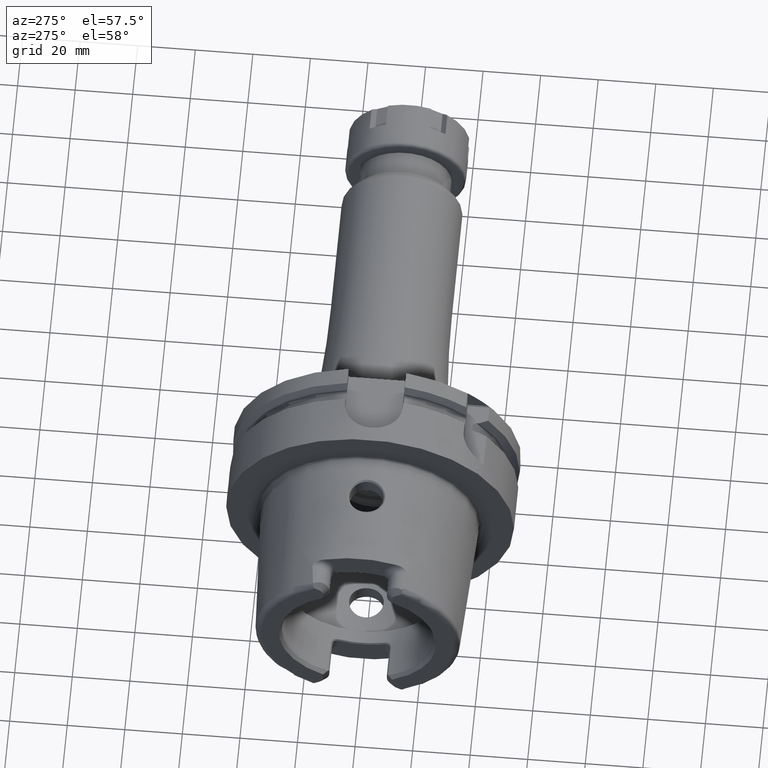
[diagram: clean part render]
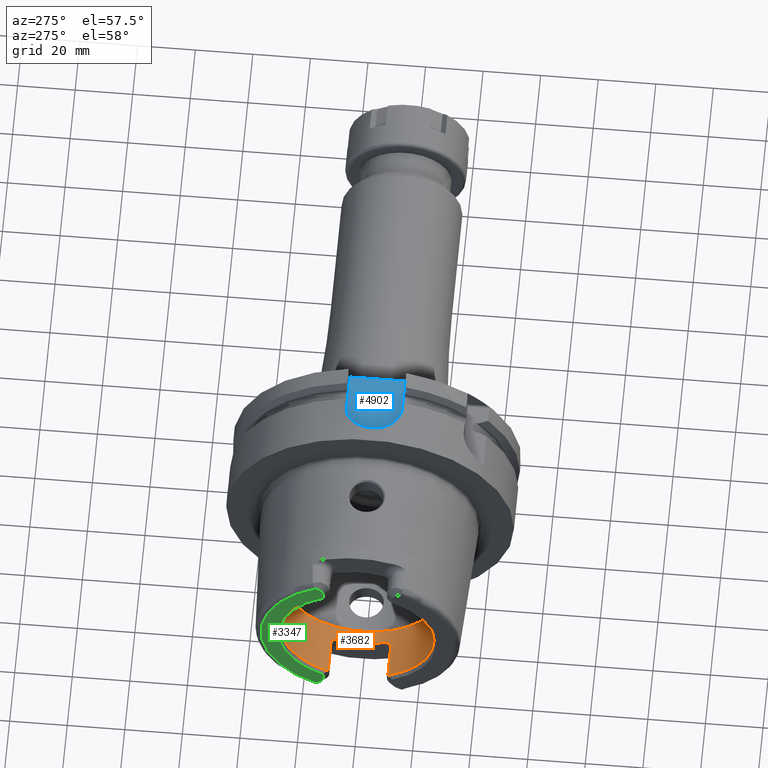
[diagram: same view with three faces highlighted in distinct colors, each labeled with its STEP entity id]
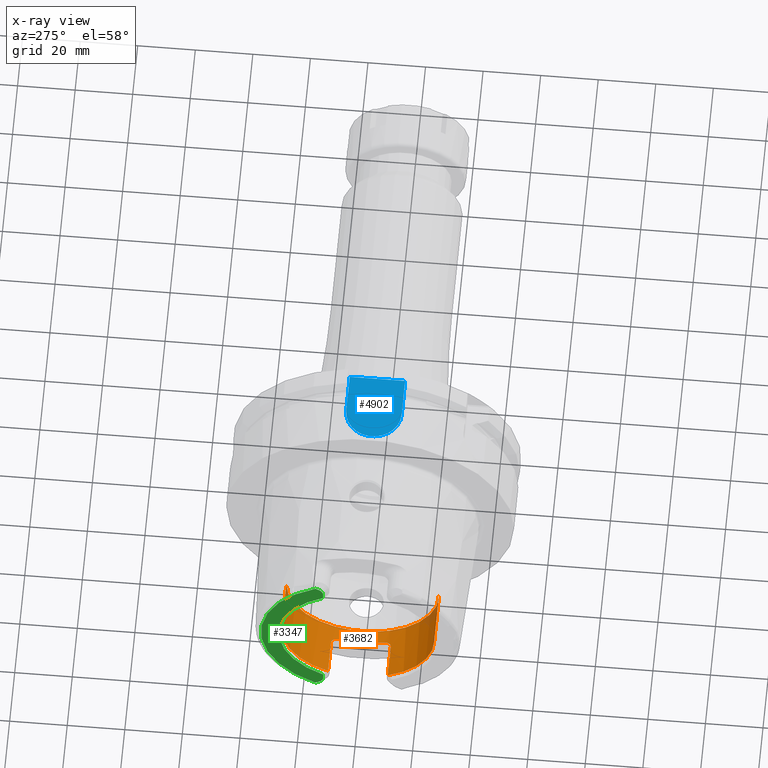
[diagram: x-ray of the same camera — body ghosted, the three highlighted faces saturated]
A machine part, auxiliary view with three faces highlighted in distinct colors.
The next image is the same camera in x-ray (body ghosted, the three faces saturated) — at least one of them is partly hidden behind the body in this view.
Their STEP definitions:

[orange] entity #3682 — the highlighted cylindrical surface (partial cylindrical patch) has radius 26.5 mm, axis along (1, 0, 0).
#152=CARTESIAN_POINT('',(-4.85E1,1.051E1,-2.432673220965E1));
#172=CARTESIAN_POINT('',(-4.85E1,0.E0,0.E0));
#173=DIRECTION('',(-1.E0,0.E0,0.E0));
#174=DIRECTION('',(0.E0,1.E0,0.E0));
#175=AXIS2_PLACEMENT_3D('',#172,#173,#174);
#180=CARTESIAN_POINT('',(-4.85E1,-1.051E1,-2.432673220965E1));
#182=CARTESIAN_POINT('',(-4.85E1,0.E0,0.E0));
#183=DIRECTION('',(-1.E0,0.E0,0.E0));
#184=DIRECTION('',(0.E0,-3.966037735849E-1,-9.179898947038E-1));
#185=AXIS2_PLACEMENT_3D('',#182,#183,#184);
#454=CARTESIAN_POINT('',(-4.85E1,-1.051E1,-2.432673220965E1));
#455=CARTESIAN_POINT('',(-4.846009940760E1,-1.047009940760E1,
-2.434397066250E1));
#456=CARTESIAN_POINT('',(-4.842017594144E1,-1.043017594144E1,
-2.436110250799E1));
#457=CARTESIAN_POINT('',(-4.838022966775E1,-1.039022966775E1,
-2.437812805470E1));
#459=DIRECTION('',(1.E0,0.E0,0.E0));
#460=VECTOR('',#459,1.138022966775E1);
#461=CARTESIAN_POINT('',(-4.838022966775E1,-1.039022966775E1,
-2.437812805470E1));
#462=LINE('',#461,#460);
#463=CARTESIAN_POINT('',(-3.471132486541E1,-8.01E0,-2.526044140549E1));
#464=CARTESIAN_POINT('',(-3.470878365387E1,-8.120563234659E0,
-2.522538218006E1));
#465=CARTESIAN_POINT('',(-3.471906599640E1,-8.340498761004E0,
-2.515406323082E1));
#466=CARTESIAN_POINT('',(-3.478267622202E1,-8.672586520945E0,
-2.504149237512E1));
#467=CARTESIAN_POINT('',(-3.489268945815E1,-8.989467647906E0,
-2.492938353432E1));
#468=CARTESIAN_POINT('',(-3.504052322957E1,-9.277750297862E0,
-2.482340953473E1));
#469=CARTESIAN_POINT('',(-3.522199090026E1,-9.537479373862E0,
-2.472468297045E1));
#470=CARTESIAN_POINT('',(-3.543924040038E1,-9.773195748090E0,
-2.463237051390E1));
#471=CARTESIAN_POINT('',(-3.569196362013E1,-9.980705213956E0,
-2.454892857931E1));
#472=CARTESIAN_POINT('',(-3.598453186629E1,-1.015759575719E1,
-2.447617541727E1));
#473=CARTESIAN_POINT('',(-3.632143240491E1,-1.029570459018E1,
-2.441829554687E1));
#474=CARTESIAN_POINT('',(-3.667918985616E1,-1.037618705974E1,
-2.438412368561E1));
#475=CARTESIAN_POINT('',(-3.689481839480E1,-1.039022966775E1,
-2.437812805470E1));
#476=CARTESIAN_POINT('',(-3.7E1,-1.039022966775E1,-2.437812805470E1));
#478=CARTESIAN_POINT('',(-3.471132486541E1,8.01E0,-2.526044140549E1));
#479=CARTESIAN_POINT('',(-3.471132486541E1,7.271271578955E0,-2.549468967366E1));
#480=CARTESIAN_POINT('',(-3.471132486546E1,5.773250992792E0,-2.589833317849E1));
#481=CARTESIAN_POINT('',(-3.471132486544E1,3.481810319461E0,-2.630458298809E1));
#482=CARTESIAN_POINT('',(-3.471132486544E1,1.163586982585E0,-2.650849211583E1));
#483=CARTESIAN_POINT('',(-3.471132486544E1,-1.163586982585E0,
-2.650849211583E1));
#484=CARTESIAN_POINT('',(-3.471132486544E1,-3.481810319461E0,
-2.630458298809E1));
#485=CARTESIAN_POINT('',(-3.471132486546E1,-5.773250992791E0,
-2.589833317849E1));
#486=CARTESIAN_POINT('',(-3.471132486541E1,-7.271271578958E0,
-2.549468967366E1));
#487=CARTESIAN_POINT('',(-3.471132486541E1,-8.01E0,-2.526044140549E1));
#489=CARTESIAN_POINT('',(-3.7E1,1.039022966775E1,-2.437812805470E1));
#490=CARTESIAN_POINT('',(-3.689375760304E1,1.039022966775E1,-2.437812805470E1));
#491=CARTESIAN_POINT('',(-3.667635124759E1,1.037592175927E1,-2.438423721529E1));
#492=CARTESIAN_POINT('',(-3.631623052643E1,1.029415408513E1,-2.441895189414E1));
#493=CARTESIAN_POINT('',(-3.597947032639E1,1.015497495082E1,-2.447726388108E1));
#494=CARTESIAN_POINT('',(-3.568903934051E1,9.978495762119E0,-2.454982411868E1));
#495=CARTESIAN_POINT('',(-3.543805179144E1,9.771970406757E0,-2.463285308238E1));
#496=CARTESIAN_POINT('',(-3.522178538203E1,9.537157318169E0,-2.472480442904E1));
#497=CARTESIAN_POINT('',(-3.504048499348E1,9.277715471543E0,-2.482342368645E1));
#498=CARTESIAN_POINT('',(-3.489237648633E1,8.988811706632E0,-2.492962282131E1));
#499=CARTESIAN_POINT('',(-3.478230284625E1,8.671343229943E0,-2.504192722240E1));
#500=CARTESIAN_POINT('',(-3.471884880625E1,8.338547582645E0,-2.515470883480E1));
#501=CARTESIAN_POINT('',(-3.470880260289E1,8.119738798873E0,-2.522564360584E1));
#502=CARTESIAN_POINT('',(-3.471132486541E1,8.01E0,-2.526044140549E1));
#504=DIRECTION('',(1.E0,0.E0,0.E0));
#505=VECTOR('',#504,1.138022966775E1);
#506=CARTESIAN_POINT('',(-4.838022966775E1,1.039022966775E1,-2.437812805470E1));
#507=LINE('',#506,#505);
#508=CARTESIAN_POINT('',(-4.838022966775E1,1.039022966775E1,-2.437812805470E1));
#509=CARTESIAN_POINT('',(-4.842017594144E1,1.043017594144E1,-2.436110250799E1));
#510=CARTESIAN_POINT('',(-4.846009940760E1,1.047009940760E1,-2.434397066250E1));
#511=CARTESIAN_POINT('',(-4.85E1,1.051E1,-2.432673220965E1));
#513=DIRECTION('',(-1.E0,0.E0,0.E0));
#514=VECTOR('',#513,1.849662432703E1);
#515=CARTESIAN_POINT('',(-3.000337567297E1,2.65E1,0.E0));
#516=LINE('',#515,#514);
#517=CARTESIAN_POINT('',(-3.000337567297E1,0.E0,0.E0));
#518=DIRECTION('',(-1.E0,0.E0,0.E0));
#519=DIRECTION('',(0.E0,1.E0,0.E0));
#520=AXIS2_PLACEMENT_3D('',#517,#518,#519);
#522=DIRECTION('',(-1.E0,0.E0,0.E0));
#523=VECTOR('',#522,1.849662432703E1);
#524=CARTESIAN_POINT('',(-3.000337567297E1,-2.65E1,0.E0));
#525=LINE('',#524,#523);
#2827=CARTESIAN_POINT('',(-3.000337567297E1,2.65E1,0.E0));
#2828=VERTEX_POINT('',#2827);
#2829=CARTESIAN_POINT('',(-4.85E1,2.65E1,0.E0));
#2830=VERTEX_POINT('',#2829);
#2839=CARTESIAN_POINT('',(-3.000337567297E1,-2.65E1,0.E0));
#2840=VERTEX_POINT('',#2839);
#2841=CARTESIAN_POINT('',(-4.85E1,-2.65E1,0.E0));
#2842=VERTEX_POINT('',#2841);
#2952=CARTESIAN_POINT('',(-3.7E1,-1.039022966775E1,-2.437812805470E1));
#2953=VERTEX_POINT('',#2952);
#2954=CARTESIAN_POINT('',(-3.471132486541E1,-8.01E0,-2.526044140549E1));
#2955=VERTEX_POINT('',#2954);
#2956=CARTESIAN_POINT('',(-3.7E1,1.039022966775E1,-2.437812805470E1));
#2957=VERTEX_POINT('',#2956);
#2958=CARTESIAN_POINT('',(-3.471132486541E1,8.01E0,-2.526044140549E1));
#2959=VERTEX_POINT('',#2958);
#2976=CARTESIAN_POINT('',(-4.838022966775E1,1.039022966775E1,
-2.437812805470E1));
#2977=VERTEX_POINT('',#2976);
#2978=VERTEX_POINT('',#152);
#2995=CARTESIAN_POINT('',(-4.838022966775E1,-1.039022966775E1,
-2.437812805470E1));
#2996=VERTEX_POINT('',#2995);
#2997=VERTEX_POINT('',#180);
#3655=CARTESIAN_POINT('',(-5.3125E1,0.E0,0.E0));
#3656=DIRECTION('',(1.E0,0.E0,0.E0));
#3657=DIRECTION('',(0.E0,-1.E0,0.E0));
#3658=AXIS2_PLACEMENT_3D('',#3655,#3656,#3657);
#3659=CYLINDRICAL_SURFACE('',#3658,2.65E1);
#3661=ORIENTED_EDGE('',*,*,#3660,.T.);
#3663=ORIENTED_EDGE('',*,*,#3662,.T.);
#3665=ORIENTED_EDGE('',*,*,#3664,.F.);
#3667=ORIENTED_EDGE('',*,*,#3666,.F.);
#3669=ORIENTED_EDGE('',*,*,#3668,.F.);
#3670=ORIENTED_EDGE('',*,*,#3647,.F.);
#3671=ORIENTED_EDGE('',*,*,#3379,.T.);
#3672=ORIENTED_EDGE('',*,*,#3401,.F.);
#3674=ORIENTED_EDGE('',*,*,#3673,.F.);
#3676=ORIENTED_EDGE('',*,*,#3675,.T.);
#3678=ORIENTED_EDGE('',*,*,#3677,.T.);
#3679=ORIENTED_EDGE('',*,*,#3413,.F.);
#3680=EDGE_LOOP('',(#3661,#3663,#3665,#3667,#3669,#3670,#3671,#3672,#3674,#3676,
#3678,#3679));
#3681=FACE_OUTER_BOUND('',#3680,.F.);
#3682=ADVANCED_FACE('',(#3681),#3659,.F.);
#176=CIRCLE('',#175,2.65E1);
#186=CIRCLE('',#185,2.65E1);
#458=B_SPLINE_CURVE_WITH_KNOTS('',3,(#454,#455,#456,#457),.UNSPECIFIED.,.F.,.F.,
(4,4),(0.E0,1.E0),.UNSPECIFIED.);
#477=B_SPLINE_CURVE_WITH_KNOTS('',3,(#463,#464,#465,#466,#467,#468,#469,#470,
#471,#472,#473,#474,#475,#476),.UNSPECIFIED.,.F.,.F.,(4,1,1,1,1,1,1,1,1,1,1,4),(
0.E0,9.090909090909E-2,1.818181818182E-1,2.727272727273E-1,3.636363636364E-1,
4.545454545455E-1,5.454545454545E-1,6.363636363636E-1,7.272727272727E-1,
8.181818181818E-1,9.090909090909E-1,1.E0),.UNSPECIFIED.);
#488=B_SPLINE_CURVE_WITH_KNOTS('',3,(#478,#479,#480,#481,#482,#483,#484,#485,
#486,#487),.UNSPECIFIED.,.F.,.F.,(4,1,1,1,1,1,1,4),(0.E0,1.428571428571E-1,
2.857142857143E-1,4.285714285714E-1,5.714285714286E-1,7.142857142857E-1,
8.571428571429E-1,1.E0),.UNSPECIFIED.);
#503=B_SPLINE_CURVE_WITH_KNOTS('',3,(#489,#490,#491,#492,#493,#494,#495,#496,
#497,#498,#499,#500,#501,#502),.UNSPECIFIED.,.F.,.F.,(4,1,1,1,1,1,1,1,1,1,1,4),(
0.E0,9.090909090909E-2,1.818181818182E-1,2.727272727273E-1,3.636363636364E-1,
4.545454545455E-1,5.454545454545E-1,6.363636363636E-1,7.272727272727E-1,
8.181818181818E-1,9.090909090909E-1,1.E0),.UNSPECIFIED.);
#512=B_SPLINE_CURVE_WITH_KNOTS('',3,(#508,#509,#510,#511),.UNSPECIFIED.,.F.,.F.,
(4,4),(0.E0,1.E0),.UNSPECIFIED.);
#521=CIRCLE('',#520,2.65E1);
#3379=EDGE_CURVE('',#2977,#2978,#512,.T.);
#3401=EDGE_CURVE('',#2830,#2978,#176,.T.);
#3413=EDGE_CURVE('',#2997,#2842,#186,.T.);
#3647=EDGE_CURVE('',#2977,#2957,#507,.T.);
#3660=EDGE_CURVE('',#2997,#2996,#458,.T.);
#3662=EDGE_CURVE('',#2996,#2953,#462,.T.);
#3664=EDGE_CURVE('',#2955,#2953,#477,.T.);
#3666=EDGE_CURVE('',#2959,#2955,#488,.T.);
#3668=EDGE_CURVE('',#2957,#2959,#503,.T.);
#3673=EDGE_CURVE('',#2828,#2830,#516,.T.);
#3675=EDGE_CURVE('',#2828,#2840,#521,.T.);
#3677=EDGE_CURVE('',#2840,#2842,#525,.T.);

[blue] entity #4902 — the highlighted planar face has unit normal (0, 0, 1).
#1218=DIRECTION('',(0.E0,1.E0,0.E0));
#1219=VECTOR('',#1218,1.9242E1);
#1220=CARTESIAN_POINT('',(2.9E1,-9.621E0,4.39E1));
#1221=LINE('',#1220,#1219);
#1711=DIRECTION('',(1.E0,-1.153869615320E-8,-1.153742209928E-8));
#1712=VECTOR('',#1711,1.402899999796E1);
#1713=CARTESIAN_POINT('',(1.497100000204E1,-9.620999838124E0,4.390000016186E1));
#1714=LINE('',#1713,#1712);
#1715=CARTESIAN_POINT('',(1.4971E1,-1.296740492762E-13,4.390000017876E1));
#1716=DIRECTION('',(0.E0,0.E0,1.E0));
#1717=DIRECTION('',(0.E0,1.E0,0.E0));
#1718=AXIS2_PLACEMENT_3D('',#1715,#1716,#1717);
#1720=DIRECTION('',(-1.E0,-1.153879985535E-8,1.153732384197E-8));
#1721=VECTOR('',#1720,1.402899999786E1);
#1722=CARTESIAN_POINT('',(2.9E1,9.621E0,4.39E1));
#1723=LINE('',#1722,#1721);
#3033=CARTESIAN_POINT('',(2.9E1,9.621E0,4.39E1));
#3035=VERTEX_POINT('',#3033);
#3036=CARTESIAN_POINT('',(2.9E1,-9.621E0,4.39E1));
#3038=VERTEX_POINT('',#3036);
#3078=CARTESIAN_POINT('',(1.497100000204E1,-9.620999838124E0,4.390000016186E1));
#3079=VERTEX_POINT('',#3078);
#3082=CARTESIAN_POINT('',(1.4971E1,9.620999207551E0,4.390000017876E1));
#3083=VERTEX_POINT('',#3082);
#4889=CARTESIAN_POINT('',(0.E0,0.E0,4.39E1));
#4890=DIRECTION('',(0.E0,0.E0,1.E0));
#4891=DIRECTION('',(1.E0,0.E0,0.E0));
#4892=AXIS2_PLACEMENT_3D('',#4889,#4890,#4891);
#4893=PLANE('',#4892);
#4895=ORIENTED_EDGE('',*,*,#4894,.F.);
#4897=ORIENTED_EDGE('',*,*,#4896,.F.);
#4898=ORIENTED_EDGE('',*,*,#4881,.F.);
#4899=ORIENTED_EDGE('',*,*,#4456,.F.);
#4900=EDGE_LOOP('',(#4895,#4897,#4898,#4899));
#4901=FACE_OUTER_BOUND('',#4900,.F.);
#4902=ADVANCED_FACE('',(#4901),#4893,.T.);
#1719=CIRCLE('',#1718,9.620999207551E0);
#4456=EDGE_CURVE('',#3038,#3035,#1221,.T.);
#4881=EDGE_CURVE('',#3035,#3083,#1723,.T.);
#4894=EDGE_CURVE('',#3079,#3038,#1714,.T.);
#4896=EDGE_CURVE('',#3083,#3079,#1719,.T.);

[green] entity #3347 — the highlighted planar face has unit normal (1, 0, 0).
#100=DIRECTION('',(0.E0,0.E0,1.E0));
#101=VECTOR('',#100,2.370180025047E0);
#102=CARTESIAN_POINT('',(-5.E1,1.201E1,-2.696E1));
#103=LINE('',#102,#101);
#104=CARTESIAN_POINT('',(-5.E1,1.501E1,-2.696E1));
#105=DIRECTION('',(1.E0,0.E0,0.E0));
#106=DIRECTION('',(0.E0,-1.E0,0.E0));
#107=AXIS2_PLACEMENT_3D('',#104,#105,#106);
#109=DIRECTION('',(0.E0,-8.533905854017E-1,5.212720103245E-1));
#110=VECTOR('',#109,1.392150953463E0);
#111=CARTESIAN_POINT('',(-5.E1,1.463423248617E1,-3.024586108239E1));
#112=LINE('',#111,#110);
#113=DIRECTION('',(0.E0,-8.533905854017E-1,-5.212720103245E-1));
#114=VECTOR('',#113,1.392150953463E0);
#115=CARTESIAN_POINT('',(-5.E1,1.463423248617E1,3.024586108239E1));
#116=LINE('',#115,#114);
#117=CARTESIAN_POINT('',(-5.E1,1.501E1,2.696E1));
#118=DIRECTION('',(-1.E0,0.E0,0.E0));
#119=DIRECTION('',(0.E0,-1.E0,0.E0));
#120=AXIS2_PLACEMENT_3D('',#117,#118,#119);
#122=DIRECTION('',(0.E0,0.E0,1.E0));
#123=VECTOR('',#122,2.370180025047E0);
#124=CARTESIAN_POINT('',(-5.E1,1.201E1,2.458981997495E1));
#125=LINE('',#124,#123);
#157=CARTESIAN_POINT('',(-5.E1,0.E0,0.E0));
#158=DIRECTION('',(1.E0,0.E0,0.E0));
#159=DIRECTION('',(0.E0,4.388653384185E-1,-8.985528447091E-1));
#160=AXIS2_PLACEMENT_3D('',#157,#158,#159);
#340=CARTESIAN_POINT('',(-5.E1,0.E0,0.E0));
#341=DIRECTION('',(-1.E0,0.E0,0.E0));
#342=DIRECTION('',(0.E0,4.355401503799E-1,9.001693048572E-1));
#343=AXIS2_PLACEMENT_3D('',#340,#341,#342);
#2869=CARTESIAN_POINT('',(-5.E1,1.201E1,2.458981997495E1));
#2870=CARTESIAN_POINT('',(-5.E1,1.201E1,2.696E1));
#2871=VERTEX_POINT('',#2869);
#2872=VERTEX_POINT('',#2870);
#2873=CARTESIAN_POINT('',(-5.E1,1.344618396903E1,2.952017175621E1));
#2874=VERTEX_POINT('',#2873);
#2875=CARTESIAN_POINT('',(-5.E1,1.463423248617E1,3.024586108239E1));
#2876=VERTEX_POINT('',#2875);
#2960=CARTESIAN_POINT('',(-5.E1,1.201E1,-2.696E1));
#2961=CARTESIAN_POINT('',(-5.E1,1.201E1,-2.458981997495E1));
#2962=VERTEX_POINT('',#2960);
#2963=VERTEX_POINT('',#2961);
#2964=CARTESIAN_POINT('',(-5.E1,1.344618396903E1,-2.952017175621E1));
#2965=VERTEX_POINT('',#2964);
#2966=CARTESIAN_POINT('',(-5.E1,1.463423248617E1,-3.024586108239E1));
#2967=VERTEX_POINT('',#2966);
#3324=CARTESIAN_POINT('',(-5.E1,0.E0,0.E0));
#3325=DIRECTION('',(1.E0,0.E0,0.E0));
#3326=DIRECTION('',(0.E0,-1.E0,0.E0));
#3327=AXIS2_PLACEMENT_3D('',#3324,#3325,#3326);
#3328=PLANE('',#3327);
#3330=ORIENTED_EDGE('',*,*,#3329,.F.);
#3332=ORIENTED_EDGE('',*,*,#3331,.T.);
#3334=ORIENTED_EDGE('',*,*,#3333,.F.);
#3336=ORIENTED_EDGE('',*,*,#3335,.F.);
#3338=ORIENTED_EDGE('',*,*,#3337,.T.);
#3340=ORIENTED_EDGE('',*,*,#3339,.F.);
#3342=ORIENTED_EDGE('',*,*,#3341,.F.);
#3344=ORIENTED_EDGE('',*,*,#3343,.F.);
#3345=EDGE_LOOP('',(#3330,#3332,#3334,#3336,#3338,#3340,#3342,#3344));
#3346=FACE_OUTER_BOUND('',#3345,.F.);
#3347=ADVANCED_FACE('',(#3346),#3328,.F.);
#108=CIRCLE('',#107,3.E0);
#121=CIRCLE('',#120,3.E0);
#161=CIRCLE('',#160,2.736602540378E1);
#344=CIRCLE('',#343,3.360019156306E1);
#3329=EDGE_CURVE('',#2962,#2963,#103,.T.);
#3331=EDGE_CURVE('',#2962,#2965,#108,.T.);
#3333=EDGE_CURVE('',#2967,#2965,#112,.T.);
#3335=EDGE_CURVE('',#2876,#2967,#344,.T.);
#3337=EDGE_CURVE('',#2876,#2874,#116,.T.);
#3339=EDGE_CURVE('',#2872,#2874,#121,.T.);
#3341=EDGE_CURVE('',#2871,#2872,#125,.T.);
#3343=EDGE_CURVE('',#2963,#2871,#161,.T.);